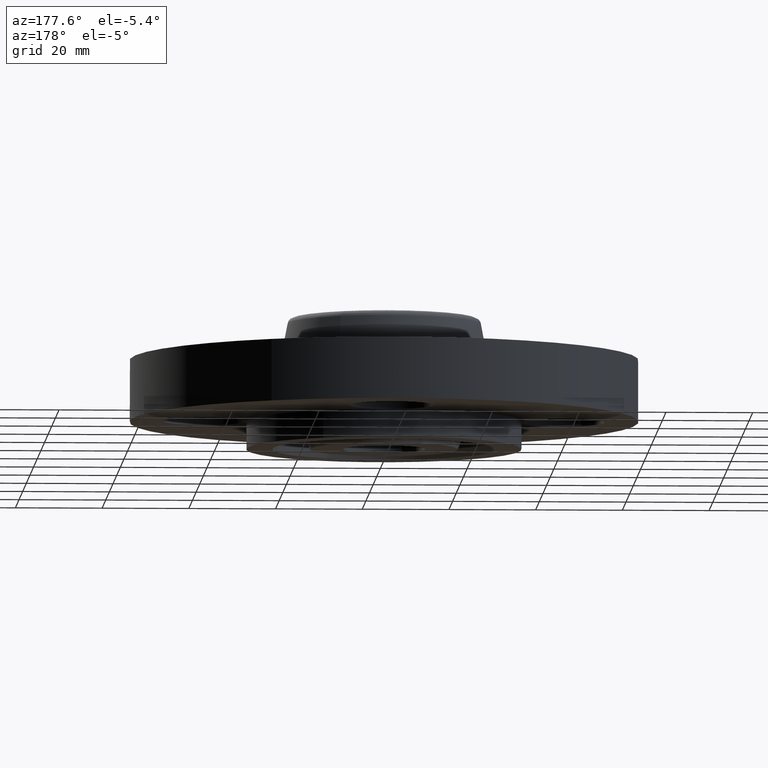
[diagram: clean part render]
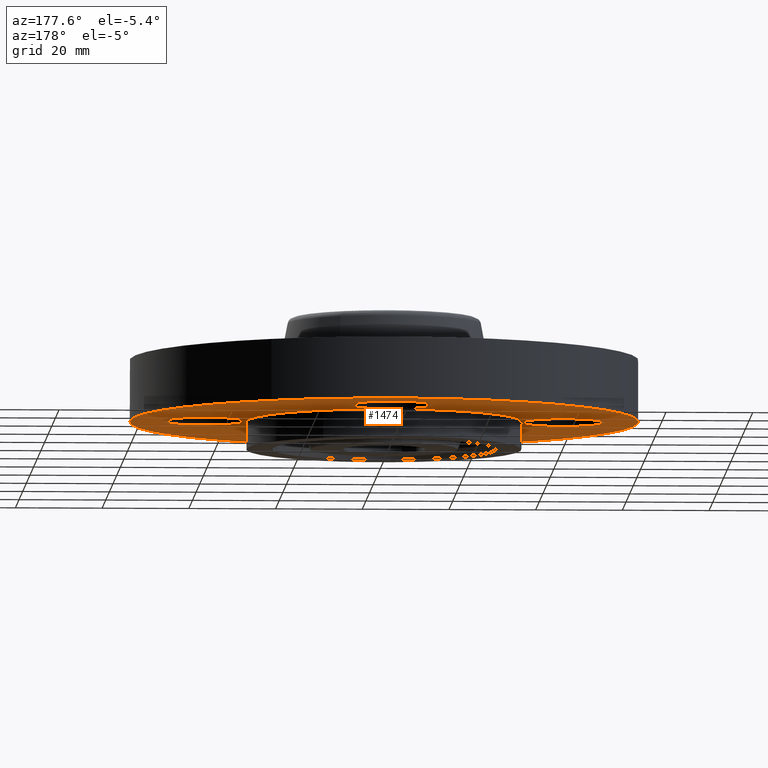
[diagram: same view with one face highlighted and labeled with its STEP entity id]
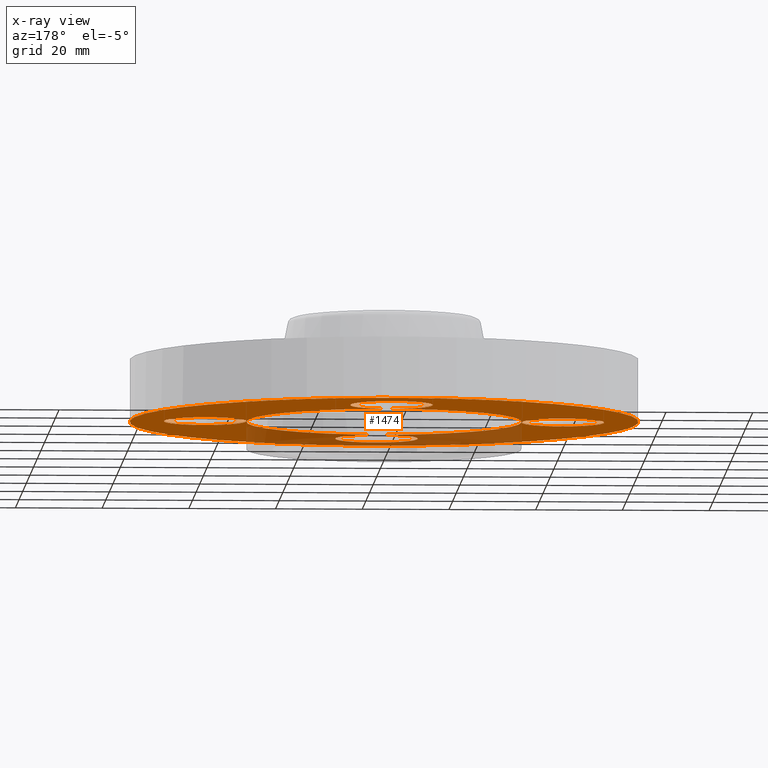
[diagram: x-ray of the same camera — body ghosted, the highlighted face saturated]
A machine part, auxiliary view. The second image highlights one B-rep face of the part: STEP entity #1474.
The next image is the same camera in x-ray: the body ghosted, the highlighted face saturated — about 25% of this face is hidden behind the body in this view.
In plain terms, the highlighted planar face has unit normal (0, 0, -1).
Its self-contained STEP definition (entity closure, byte-faithful):
#616=AXIS2_PLACEMENT_3D('Plane Axis2P3D',#613,#614,#615) ;
#934=AXIS2_PLACEMENT_3D('Circle Axis2P3D',#932,#933,$) ;
#1008=AXIS2_PLACEMENT_3D('Circle Axis2P3D',#1006,#1007,$) ;
#1015=AXIS2_PLACEMENT_3D('Circle Axis2P3D',#1013,#1014,$) ;
#1047=AXIS2_PLACEMENT_3D('Circle Axis2P3D',#1045,#1046,$) ;
#1054=AXIS2_PLACEMENT_3D('Circle Axis2P3D',#1052,#1053,$) ;
#1129=AXIS2_PLACEMENT_3D('Circle Axis2P3D',#1127,#1128,$) ;
#1136=AXIS2_PLACEMENT_3D('Circle Axis2P3D',#1134,#1135,$) ;
#1211=AXIS2_PLACEMENT_3D('Circle Axis2P3D',#1209,#1210,$) ;
#1218=AXIS2_PLACEMENT_3D('Circle Axis2P3D',#1216,#1217,$) ;
#1422=AXIS2_PLACEMENT_3D('Circle Axis2P3D',#1420,#1421,$) ;
#1427=AXIS2_PLACEMENT_3D('Circle Axis2P3D',#1425,#1426,$) ;
#1434=AXIS2_PLACEMENT_3D('Circle Axis2P3D',#1432,#1433,$) ;
#1439=AXIS2_PLACEMENT_3D('Circle Axis2P3D',#1437,#1438,$) ;
#1444=AXIS2_PLACEMENT_3D('Circle Axis2P3D',#1442,#1443,$) ;
#1451=AXIS2_PLACEMENT_3D('Circle Axis2P3D',#1449,#1450,$) ;
#613=CARTESIAN_POINT('Axis2P3D Location',(0.,1.25000000001,0.)) ;
#883=CARTESIAN_POINT('Control Point',(1.10747299418,2.02721571797,-9.55994688486E-012)) ;
#884=CARTESIAN_POINT('Control Point',(1.42590729452,1.85325426685,-9.08195653415E-012)) ;
#885=CARTESIAN_POINT('Control Point',(1.71018434381,1.61676838705,-8.60396618344E-012)) ;
#886=CARTESIAN_POINT('Control Point',(1.94387991118,1.32665044307,-8.1259583489E-012)) ;
#887=CARTESIAN_POINT('Control Point',(2.28492391662,0.67041494059,-7.16997764747E-012)) ;
#888=CARTESIAN_POINT('Control Point',(2.35251083668,-0.066055056493,-6.21399694605E-012)) ;
#889=CARTESIAN_POINT('Control Point',(2.31261419157,-0.436447142444,-5.73598911151E-012)) ;
#890=CARTESIAN_POINT('Control Point',(2.08974014664,-1.14163024524,-4.78000841009E-012)) ;
#891=CARTESIAN_POINT('Control Point',(1.61676838706,-1.71018434381,-3.82402770866E-012)) ;
#892=CARTESIAN_POINT('Control Point',(1.32665044308,-1.94387991118,-3.34601987412E-012)) ;
#893=CARTESIAN_POINT('Control Point',(0.670414940591,-2.28492391662,-2.3900391727E-012)) ;
#894=CARTESIAN_POINT('Control Point',(-0.0660550564923,-2.35251083668,-1.43405847127E-012)) ;
#895=CARTESIAN_POINT('Control Point',(-0.436447142444,-2.31261419157,-9.56050636733E-013)) ;
#896=CARTESIAN_POINT('Control Point',(-0.78903869384,-2.2011771691,-4.78060286021E-013)) ;
#897=CARTESIAN_POINT('Control Point',(-1.10747299418,-2.02721571798,-6.99353086378E-017)) ;
#898=CARTESIAN_POINT('Vertex',(1.10747299421,2.027215718,0.)) ;
#900=CARTESIAN_POINT('Vertex',(-1.10747299421,-2.02721571798,0.)) ;
#932=CARTESIAN_POINT('Axis2P3D Location',(0.,0.,-9.55994688486E-012)) ;
#960=CARTESIAN_POINT('Vertex',(-0.329093460698,1.804784577,0.)) ;
#964=CARTESIAN_POINT('Control Point',(-0.32909346071,1.80478457699,6.99353086375E-017)) ;
#965=CARTESIAN_POINT('Control Point',(-0.300852965397,1.85647845691,4.23510745283E-013)) ;
#966=CARTESIAN_POINT('Control Point',(-0.262462400496,1.90262732855,8.46951555258E-013)) ;
#967=CARTESIAN_POINT('Control Point',(-0.215365331668,1.94056492066,1.27033991375E-012)) ;
#968=CARTESIAN_POINT('Control Point',(-0.108833594252,1.99592920725,2.1172215337E-012)) ;
#969=CARTESIAN_POINT('Control Point',(0.0107232234565,2.00690110986,2.96410315365E-012)) ;
#970=CARTESIAN_POINT('Control Point',(0.0708518088381,2.00042438176,3.38756144745E-012)) ;
#971=CARTESIAN_POINT('Control Point',(0.185329585265,1.96424353031,4.2344430674E-012)) ;
#972=CARTESIAN_POINT('Control Point',(0.27762732854,1.88746240051,5.08132468735E-012)) ;
#973=CARTESIAN_POINT('Control Point',(0.315564920645,1.84036533168,5.50478298115E-012)) ;
#974=CARTESIAN_POINT('Control Point',(0.370929207243,1.73383359426,6.3516646011E-012)) ;
#975=CARTESIAN_POINT('Control Point',(0.38190110985,1.61427677655,7.19854622105E-012)) ;
#976=CARTESIAN_POINT('Control Point',(0.375424381748,1.55414819117,7.62193457955E-012)) ;
#977=CARTESIAN_POINT('Control Point',(0.357333956023,1.49690930296,8.04537538952E-012)) ;
#978=CARTESIAN_POINT('Control Point',(0.32909346071,1.44521542303,8.4688161995E-012)) ;
#979=CARTESIAN_POINT('Vertex',(0.329093460698,1.44521542305,0.)) ;
#1006=CARTESIAN_POINT('Axis2P3D Location',(0.,1.62500000001,8.4688861348E-012)) ;
#1010=CARTESIAN_POINT('Vertex',(3.56670074053E-015,1.25000000001,-9.55994688486E-012)) ;
#1013=CARTESIAN_POINT('Axis2P3D Location',(0.,1.62500000001,8.4688861348E-012)) ;
#1042=CARTESIAN_POINT('Vertex',(1.44521542304,-0.329093460688,0.)) ;
#1045=CARTESIAN_POINT('Axis2P3D Location',(1.62500000001,-1.8023868212E-016,8.4688861348E-012)) ;
#1049=CARTESIAN_POINT('Vertex',(1.25000000001,-2.09805925913E-016,-9.55994688486E-012)) ;
#1052=CARTESIAN_POINT('Axis2P3D Location',(1.62500000001,-1.8023868212E-016,8.4688861348E-012)) ;
#1056=CARTESIAN_POINT('Vertex',(1.80478457699,0.329093460708,0.)) ;
#1085=CARTESIAN_POINT('Control Point',(1.80478457699,0.32909346071,-2.60531586051E-028)) ;
#1086=CARTESIAN_POINT('Control Point',(1.85647845691,0.300852965397,4.2344430674E-013)) ;
#1087=CARTESIAN_POINT('Control Point',(1.90262732855,0.262462400496,8.4688861348E-013)) ;
#1088=CARTESIAN_POINT('Control Point',(1.94056492066,0.215365331668,1.27033292022E-012)) ;
#1089=CARTESIAN_POINT('Control Point',(1.99592920725,0.108833594252,2.1172215337E-012)) ;
#1090=CARTESIAN_POINT('Control Point',(2.00690110986,-0.0107232234565,2.96411014718E-012)) ;
#1091=CARTESIAN_POINT('Control Point',(2.00042438176,-0.0708518088381,3.38755445392E-012)) ;
#1092=CARTESIAN_POINT('Control Point',(1.96424353031,-0.185329585265,4.2344430674E-012)) ;
#1093=CARTESIAN_POINT('Control Point',(1.88746240051,-0.27762732854,5.08133168088E-012)) ;
#1094=CARTESIAN_POINT('Control Point',(1.84036533168,-0.315564920645,5.50477598762E-012)) ;
#1095=CARTESIAN_POINT('Control Point',(1.73383359426,-0.370929207243,6.3516646011E-012)) ;
#1096=CARTESIAN_POINT('Control Point',(1.61427677655,-0.38190110985,7.19855321458E-012)) ;
#1097=CARTESIAN_POINT('Control Point',(1.55414819117,-0.375424381748,7.62199752132E-012)) ;
#1098=CARTESIAN_POINT('Control Point',(1.49690930296,-0.357333956023,8.04544182806E-012)) ;
#1099=CARTESIAN_POINT('Control Point',(1.44521542303,-0.32909346071,8.4688861348E-012)) ;
#1124=CARTESIAN_POINT('Vertex',(-0.329093460698,-1.44521542303,0.)) ;
#1127=CARTESIAN_POINT('Axis2P3D Location',(1.99005104862E-016,-1.62500000001,8.4688861348E-012)) ;
#1131=CARTESIAN_POINT('Vertex',(2.79741234551E-016,-1.25000000001,-9.55994688486E-012)) ;
#1134=CARTESIAN_POINT('Axis2P3D Location',(1.99005104862E-016,-1.62500000001,8.4688861348E-012)) ;
#1138=CARTESIAN_POINT('Vertex',(0.329093460698,-1.80478457698,0.)) ;
#1167=CARTESIAN_POINT('Control Point',(0.32909346071,-1.80478457699,-2.60531586051E-028)) ;
#1168=CARTESIAN_POINT('Control Point',(0.300852965397,-1.85647845691,4.2344430674E-013)) ;
#1169=CARTESIAN_POINT('Control Point',(0.262462400496,-1.90262732855,8.4688861348E-013)) ;
#1170=CARTESIAN_POINT('Control Point',(0.215365331668,-1.94056492066,1.27033292022E-012)) ;
#1171=CARTESIAN_POINT('Control Point',(0.108833594252,-1.99592920725,2.1172215337E-012)) ;
#1172=CARTESIAN_POINT('Control Point',(-0.0107232234565,-2.00690110986,2.96411014718E-012)) ;
#1173=CARTESIAN_POINT('Control Point',(-0.0708518088381,-2.00042438176,3.38755445392E-012)) ;
#1174=CARTESIAN_POINT('Control Point',(-0.185329585265,-1.96424353031,4.2344430674E-012)) ;
#1175=CARTESIAN_POINT('Control Point',(-0.27762732854,-1.88746240051,5.08133168088E-012)) ;
#1176=CARTESIAN_POINT('Control Point',(-0.315564920645,-1.84036533168,5.50477598762E-012)) ;
#1177=CARTESIAN_POINT('Control Point',(-0.370929207243,-1.73383359426,6.3516646011E-012)) ;
#1178=CARTESIAN_POINT('Control Point',(-0.38190110985,-1.61427677655,7.19855321458E-012)) ;
#1179=CARTESIAN_POINT('Control Point',(-0.375424381748,-1.55414819117,7.62199752132E-012)) ;
#1180=CARTESIAN_POINT('Control Point',(-0.357333956023,-1.49690930296,8.04544182806E-012)) ;
#1181=CARTESIAN_POINT('Control Point',(-0.32909346071,-1.44521542303,8.4688861348E-012)) ;
#1206=CARTESIAN_POINT('Vertex',(-1.44521542304,0.329093460708,0.)) ;
#1209=CARTESIAN_POINT('Axis2P3D Location',(-1.62500000001,-2.98507657293E-016,8.4688861348E-012)) ;
#1213=CARTESIAN_POINT('Vertex',(-1.25,1.00003295234E-011,0.)) ;
#1216=CARTESIAN_POINT('Axis2P3D Location',(-1.62500000001,-2.98507657293E-016,8.4688861348E-012)) ;
#1220=CARTESIAN_POINT('Vertex',(-1.80478457699,-0.329093460688,0.)) ;
#1249=CARTESIAN_POINT('Control Point',(-1.80478457699,-0.32909346071,-2.60531586051E-028)) ;
#1250=CARTESIAN_POINT('Control Point',(-1.85647845691,-0.300852965397,4.2344430674E-013)) ;
#1251=CARTESIAN_POINT('Control Point',(-1.90262732855,-0.262462400496,8.4688861348E-013)) ;
#1252=CARTESIAN_POINT('Control Point',(-1.94056492066,-0.215365331668,1.27033292022E-012)) ;
#1253=CARTESIAN_POINT('Control Point',(-1.99592920725,-0.108833594252,2.1172215337E-012)) ;
#1254=CARTESIAN_POINT('Control Point',(-2.00690110986,0.0107232234565,2.96411014718E-012)) ;
#1255=CARTESIAN_POINT('Control Point',(-2.00042438176,0.0708518088381,3.38755445392E-012)) ;
#1256=CARTESIAN_POINT('Control Point',(-1.96424353031,0.185329585265,4.2344430674E-012)) ;
#1257=CARTESIAN_POINT('Control Point',(-1.88746240051,0.27762732854,5.08133168088E-012)) ;
#1258=CARTESIAN_POINT('Control Point',(-1.84036533168,0.315564920645,5.50477598762E-012)) ;
#1259=CARTESIAN_POINT('Control Point',(-1.73383359426,0.370929207243,6.3516646011E-012)) ;
#1260=CARTESIAN_POINT('Control Point',(-1.61427677655,0.38190110985,7.19855321458E-012)) ;
#1261=CARTESIAN_POINT('Control Point',(-1.55414819117,0.375424381748,7.62199752132E-012)) ;
#1262=CARTESIAN_POINT('Control Point',(-1.49690930296,0.357333956023,8.04544182806E-012)) ;
#1263=CARTESIAN_POINT('Control Point',(-1.44521542303,0.32909346071,8.4688861348E-012)) ;
#1420=CARTESIAN_POINT('Axis2P3D Location',(5.50948962742E-011,-4.50949863627E-011,0.)) ;
#1425=CARTESIAN_POINT('Axis2P3D Location',(-1.28371853829E-011,7.51440904251E-012,0.)) ;
#1429=CARTESIAN_POINT('Vertex',(0.599281923259,1.09697820237,-9.55994688486E-012)) ;
#1432=CARTESIAN_POINT('Axis2P3D Location',(2.37968699864E-011,6.6424975756E-011,0.)) ;
#1437=CARTESIAN_POINT('Axis2P3D Location',(7.00911245055E-011,-6.00910747233E-011,0.)) ;
#1442=CARTESIAN_POINT('Axis2P3D Location',(1.28371853829E-011,1.24856905217E-011,0.)) ;
#1446=CARTESIAN_POINT('Vertex',(-0.59928192326,-1.09697820237,-9.55994688486E-012)) ;
#1449=CARTESIAN_POINT('Axis2P3D Location',(-2.37968699864E-011,-4.64248761918E-011,0.)) ;
#614=DIRECTION('Axis2P3D Direction',(0.,0.,-0.0393700787402)) ;
#615=DIRECTION('Axis2P3D XDirection',(0.0393700787402,0.,0.)) ;
#933=DIRECTION('Axis2P3D Direction',(0.,0.,-0.0393700787402)) ;
#1007=DIRECTION('Axis2P3D Direction',(0.,-0.,-0.0393700787402)) ;
#1014=DIRECTION('Axis2P3D Direction',(0.,-0.,-0.0393700787402)) ;
#1046=DIRECTION('Axis2P3D Direction',(0.,-0.,-0.0393700787402)) ;
#1053=DIRECTION('Axis2P3D Direction',(0.,-0.,-0.0393700787402)) ;
#1128=DIRECTION('Axis2P3D Direction',(0.,0.,-0.0393700787402)) ;
#1135=DIRECTION('Axis2P3D Direction',(0.,0.,-0.0393700787402)) ;
#1210=DIRECTION('Axis2P3D Direction',(0.,0.,-0.0393700787402)) ;
#1217=DIRECTION('Axis2P3D Direction',(0.,0.,-0.0393700787402)) ;
#1421=DIRECTION('Axis2P3D Direction',(0.,0.,-0.0393700787402)) ;
#1426=DIRECTION('Axis2P3D Direction',(0.,0.,-0.0393700787402)) ;
#1433=DIRECTION('Axis2P3D Direction',(0.,0.,-0.0393700787402)) ;
#1438=DIRECTION('Axis2P3D Direction',(0.,0.,-0.0393700787402)) ;
#1443=DIRECTION('Axis2P3D Direction',(0.,0.,-0.0393700787402)) ;
#1450=DIRECTION('Axis2P3D Direction',(0.,0.,-0.0393700787402)) ;
#1417=ORIENTED_EDGE('',*,*,#936,.T.) ;
#1418=ORIENTED_EDGE('',*,*,#902,.T.) ;
#1455=ORIENTED_EDGE('',*,*,#1133,.F.) ;
#1456=ORIENTED_EDGE('',*,*,#1182,.F.) ;
#1457=ORIENTED_EDGE('',*,*,#1140,.F.) ;
#1458=ORIENTED_EDGE('',*,*,#1424,.F.) ;
#1459=ORIENTED_EDGE('',*,*,#1051,.F.) ;
#1460=ORIENTED_EDGE('',*,*,#1100,.F.) ;
#1461=ORIENTED_EDGE('',*,*,#1058,.F.) ;
#1462=ORIENTED_EDGE('',*,*,#1431,.F.) ;
#1463=ORIENTED_EDGE('',*,*,#1436,.F.) ;
#1464=ORIENTED_EDGE('',*,*,#1012,.F.) ;
#1465=ORIENTED_EDGE('',*,*,#981,.F.) ;
#1466=ORIENTED_EDGE('',*,*,#1017,.F.) ;
#1467=ORIENTED_EDGE('',*,*,#1441,.F.) ;
#1468=ORIENTED_EDGE('',*,*,#1215,.F.) ;
#1469=ORIENTED_EDGE('',*,*,#1264,.F.) ;
#1470=ORIENTED_EDGE('',*,*,#1222,.F.) ;
#1471=ORIENTED_EDGE('',*,*,#1448,.F.) ;
#1472=ORIENTED_EDGE('',*,*,#1453,.F.) ;
#1473=FACE_BOUND('',#1454,.T.) ;
#1474=ADVANCED_FACE('PartBody',(#1419,#1473),#617,.T.) ;
#882=B_SPLINE_CURVE_WITH_KNOTS('',5,(#883,#884,#885,#886,#887,#888,#889,#890,#891,#892,#893,#894,#895,#896,#897),.UNSPECIFIED.,.F.,.U.,(6,3,3,3,6),(-92.1649036787,-46.0824518394,-7.1054273576E-015,46.0824518394,92.1649036787),.UNSPECIFIED.) ;
#963=B_SPLINE_CURVE_WITH_KNOTS('',5,(#964,#965,#966,#967,#968,#969,#970,#971,#972,#973,#974,#975,#976,#977,#978),.UNSPECIFIED.,.F.,.U.,(6,3,3,3,6),(-14.9618350128,-7.48091750638,8.881784197E-016,7.48091750638,14.9618350128),.UNSPECIFIED.) ;
#1084=B_SPLINE_CURVE_WITH_KNOTS('',5,(#1085,#1086,#1087,#1088,#1089,#1090,#1091,#1092,#1093,#1094,#1095,#1096,#1097,#1098,#1099),.UNSPECIFIED.,.F.,.U.,(6,3,3,3,6),(-14.9618350128,-7.48091750638,8.881784197E-016,7.48091750638,14.9618350128),.UNSPECIFIED.) ;
#1166=B_SPLINE_CURVE_WITH_KNOTS('',5,(#1167,#1168,#1169,#1170,#1171,#1172,#1173,#1174,#1175,#1176,#1177,#1178,#1179,#1180,#1181),.UNSPECIFIED.,.F.,.U.,(6,3,3,3,6),(-14.9618350128,-7.48091750638,8.881784197E-016,7.48091750638,14.9618350128),.UNSPECIFIED.) ;
#1248=B_SPLINE_CURVE_WITH_KNOTS('',5,(#1249,#1250,#1251,#1252,#1253,#1254,#1255,#1256,#1257,#1258,#1259,#1260,#1261,#1262,#1263),.UNSPECIFIED.,.F.,.U.,(6,3,3,3,6),(-14.9618350128,-7.48091750638,8.881784197E-016,7.48091750638,14.9618350128),.UNSPECIFIED.) ;
#935=CIRCLE('generated circle',#934,2.31000000001) ;
#1009=CIRCLE('generated circle',#1008,0.375000000001) ;
#1016=CIRCLE('generated circle',#1015,0.375000000001) ;
#1048=CIRCLE('generated circle',#1047,0.375000000001) ;
#1055=CIRCLE('generated circle',#1054,0.375000000001) ;
#1130=CIRCLE('generated circle',#1129,0.375000000001) ;
#1137=CIRCLE('generated circle',#1136,0.375000000001) ;
#1212=CIRCLE('generated circle',#1211,0.375000000001) ;
#1219=CIRCLE('generated circle',#1218,0.375000000001) ;
#1423=CIRCLE('generated circle',#1422,1.24999999994) ;
#1428=CIRCLE('generated circle',#1427,1.25000000001) ;
#1435=CIRCLE('generated circle',#1434,1.24999999994) ;
#1440=CIRCLE('generated circle',#1439,1.25000000007) ;
#1445=CIRCLE('generated circle',#1444,1.25000000001) ;
#1452=CIRCLE('generated circle',#1451,1.24999999994) ;
#902=EDGE_CURVE('',#899,#901,#882,.T.) ;
#936=EDGE_CURVE('',#901,#899,#935,.T.) ;
#981=EDGE_CURVE('',#961,#980,#963,.T.) ;
#1012=EDGE_CURVE('',#980,#1011,#1009,.T.) ;
#1017=EDGE_CURVE('',#1011,#961,#1016,.T.) ;
#1051=EDGE_CURVE('',#1043,#1050,#1048,.T.) ;
#1058=EDGE_CURVE('',#1050,#1057,#1055,.T.) ;
#1100=EDGE_CURVE('',#1057,#1043,#1084,.T.) ;
#1133=EDGE_CURVE('',#1125,#1132,#1130,.T.) ;
#1140=EDGE_CURVE('',#1132,#1139,#1137,.T.) ;
#1182=EDGE_CURVE('',#1139,#1125,#1166,.T.) ;
#1215=EDGE_CURVE('',#1207,#1214,#1212,.T.) ;
#1222=EDGE_CURVE('',#1214,#1221,#1219,.T.) ;
#1264=EDGE_CURVE('',#1221,#1207,#1248,.T.) ;
#1424=EDGE_CURVE('',#1050,#1132,#1423,.T.) ;
#1431=EDGE_CURVE('',#1430,#1050,#1428,.T.) ;
#1436=EDGE_CURVE('',#1011,#1430,#1435,.T.) ;
#1441=EDGE_CURVE('',#1214,#1011,#1440,.T.) ;
#1448=EDGE_CURVE('',#1447,#1214,#1445,.T.) ;
#1453=EDGE_CURVE('',#1132,#1447,#1452,.T.) ;
#1416=EDGE_LOOP('',(#1417,#1418)) ;
#1454=EDGE_LOOP('',(#1455,#1456,#1457,#1458,#1459,#1460,#1461,#1462,#1463,#1464,#1465,#1466,#1467,#1468,#1469,#1470,#1471,#1472)) ;
#1419=FACE_OUTER_BOUND('',#1416,.T.) ;
#617=PLANE('',#616) ;
#899=VERTEX_POINT('',#898) ;
#901=VERTEX_POINT('',#900) ;
#961=VERTEX_POINT('',#960) ;
#980=VERTEX_POINT('',#979) ;
#1011=VERTEX_POINT('',#1010) ;
#1043=VERTEX_POINT('',#1042) ;
#1050=VERTEX_POINT('',#1049) ;
#1057=VERTEX_POINT('',#1056) ;
#1125=VERTEX_POINT('',#1124) ;
#1132=VERTEX_POINT('',#1131) ;
#1139=VERTEX_POINT('',#1138) ;
#1207=VERTEX_POINT('',#1206) ;
#1214=VERTEX_POINT('',#1213) ;
#1221=VERTEX_POINT('',#1220) ;
#1430=VERTEX_POINT('',#1429) ;
#1447=VERTEX_POINT('',#1446) ;